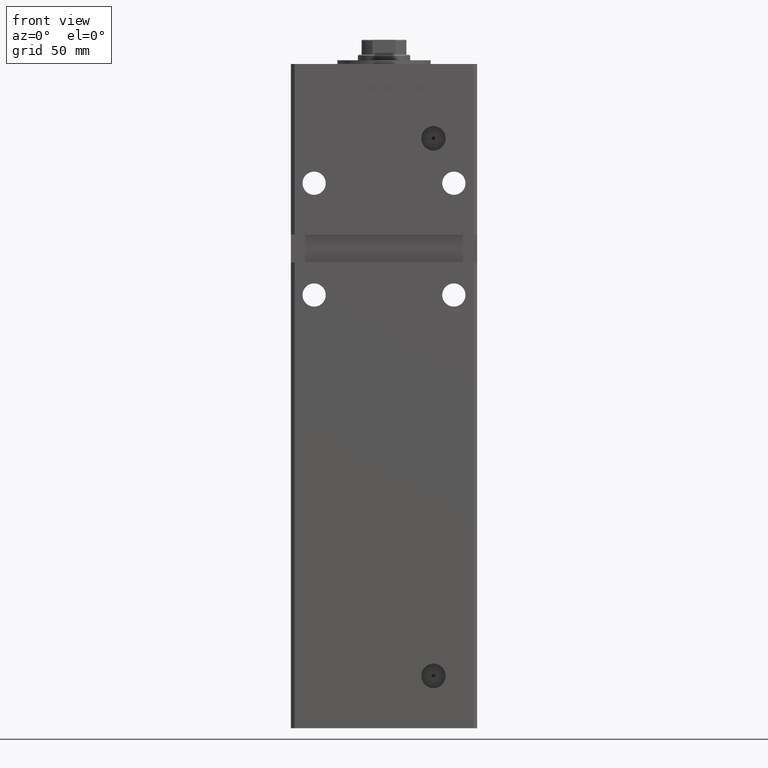
[diagram: clean part render]
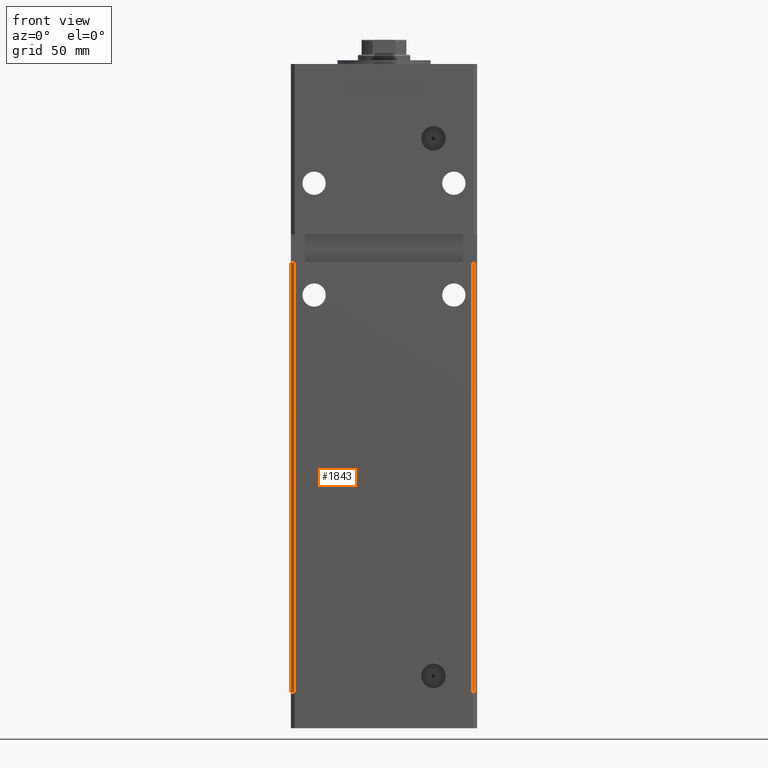
[diagram: same view with one face highlighted and labeled with its STEP entity id]
A machine part, front view. The second image highlights one B-rep face of the part: STEP entity #1843.
In plain terms, the highlighted planar face has unit normal (0.7071, 0.7071, 0).
Its self-contained STEP definition (entity closure, byte-faithful):
#617 = CARTESIAN_POINT ( 'NONE',  ( -47.99999999999998579, -43.50000000000000000, 230.9999999999999716 ) ) ;
#699 = FACE_OUTER_BOUND ( 'NONE', #45490, .T. ) ;
#1843 = ADVANCED_FACE ( 'NONE', ( #699 ), #29454, .F. ) ;
#3288 = DIRECTION ( 'NONE',  ( 0.7071067811865474617, -0.7071067811865474617, 0.000000000000000000 ) ) ;
#5011 = VERTEX_POINT ( 'NONE', #45429 ) ;
#5254 = CARTESIAN_POINT ( 'NONE',  ( -49.99999999999998579, -41.49999999999999289, 230.9999999999999716 ) ) ;
#5784 = CARTESIAN_POINT ( 'NONE',  ( -47.99999999999998579, -43.50000000000000000, 318.5000000000000000 ) ) ;
#7337 = CARTESIAN_POINT ( 'NONE',  ( -49.99999999999998579, -41.49999999999999289, 0.000000000000000000 ) ) ;
#8776 = DIRECTION ( 'NONE',  ( 0.7071067811865475727, 0.7071067811865475727, -0.000000000000000000 ) ) ;
#9531 = ORIENTED_EDGE ( 'NONE', *, *, #32604, .T. ) ;
#9829 = DIRECTION ( 'NONE',  ( -0.7071067811865474617, 0.7071067811865474617, 0.000000000000000000 ) ) ;
#13154 = VECTOR ( 'NONE', #22912, 1000.000000000000000 ) ;
#14370 = CARTESIAN_POINT ( 'NONE',  ( -47.99999999999998579, -43.50000000000000000, 0.000000000000000000 ) ) ;
#15141 = VERTEX_POINT ( 'NONE', #31578 ) ;
#17617 = CARTESIAN_POINT ( 'NONE',  ( -49.99999999999998579, -41.49999999999999289, 318.5000000000000000 ) ) ;
#20606 = EDGE_CURVE ( 'NONE', #15141, #46333, #48434, .T. ) ;
#22912 = DIRECTION ( 'NONE',  ( -0.000000000000000000, -0.000000000000000000, -1.000000000000000000 ) ) ;
#24514 = VERTEX_POINT ( 'NONE', #617 ) ;
#25194 = EDGE_CURVE ( 'NONE', #24514, #5011, #34529, .T. ) ;
#25846 = VECTOR ( 'NONE', #9829, 1000.000000000000114 ) ;
#29454 = PLANE ( 'NONE',  #48992 ) ;
#29961 = DIRECTION ( 'NONE',  ( -0.000000000000000000, -0.000000000000000000, -1.000000000000000000 ) ) ;
#30706 = CARTESIAN_POINT ( 'NONE',  ( -49.99999999999998579, -41.49999999999999289, 318.5000000000000000 ) ) ;
#31578 = CARTESIAN_POINT ( 'NONE',  ( -49.99999999999998579, -41.49999999999999289, 0.000000000000000000 ) ) ;
#32604 = EDGE_CURVE ( 'NONE', #5011, #15141, #47371, .T. ) ;
#34529 = LINE ( 'NONE', #5254, #25846 ) ;
#41384 = ORIENTED_EDGE ( 'NONE', *, *, #25194, .T. ) ;
#45429 = CARTESIAN_POINT ( 'NONE',  ( -49.99999999999998579, -41.49999999999999289, 230.9999999999999716 ) ) ;
#45490 = EDGE_LOOP ( 'NONE', ( #52548, #41384, #9531, #51243 ) ) ;
#46333 = VERTEX_POINT ( 'NONE', #14370 ) ;
#46644 = DIRECTION ( 'NONE',  ( -0.7071067811865474617, 0.7071067811865474617, 0.000000000000000000 ) ) ;
#46890 = LINE ( 'NONE', #5784, #51626 ) ;
#47175 = EDGE_CURVE ( 'NONE', #24514, #46333, #46890, .T. ) ;
#47371 = LINE ( 'NONE', #30706, #13154 ) ;
#48434 = LINE ( 'NONE', #7337, #50725 ) ;
#48992 = AXIS2_PLACEMENT_3D ( 'NONE', #17617, #8776, #46644 ) ;
#50725 = VECTOR ( 'NONE', #3288, 1000.000000000000114 ) ;
#51243 = ORIENTED_EDGE ( 'NONE', *, *, #20606, .T. ) ;
#51626 = VECTOR ( 'NONE', #29961, 1000.000000000000000 ) ;
#52548 = ORIENTED_EDGE ( 'NONE', *, *, #47175, .F. ) ;